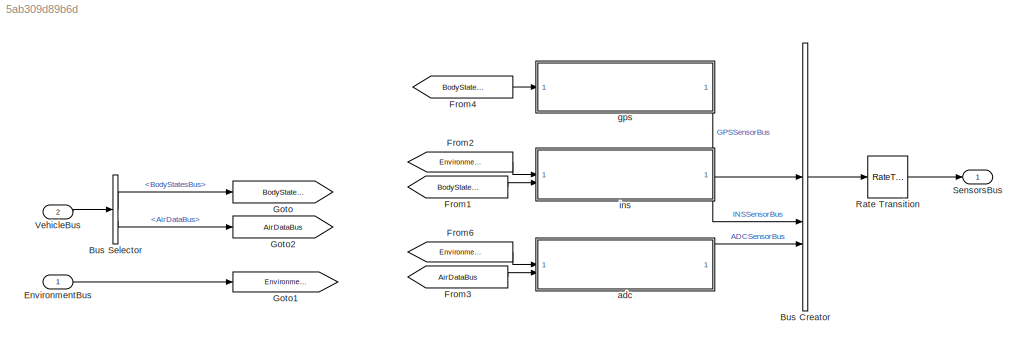
MODEL slx_5ab309d89b6d
KIND model
BLOCK [BusCreator] Bus Creator
  DisplayOption = bar
  InheritFromInputs = off
  Inputs = 3
  OutDataTypeStr = Bus: SensorsBus
BLOCK [BusSelector] Bus Selector
  OutputSignals = BodyStatesBus,AirDataBus
BLOCK [Inport] EnvironmentBus
  OutDataTypeStr = Bus: EnvironmentBus
BLOCK [From] From1
  GotoTag = BodyStatesBus
BLOCK [From] From2
  GotoTag = EnvironmentBus
BLOCK [From] From3
  GotoTag = AirDataBus
BLOCK [From] From4
  GotoTag = BodyStatesBus
BLOCK [From] From6
  GotoTag = EnvironmentBus
BLOCK [Goto] Goto
  GotoTag = BodyStatesBus
BLOCK [Goto] Goto1
  GotoTag = EnvironmentBus
BLOCK [Goto] Goto2
  GotoTag = AirDataBus
BLOCK [RateTransition] Rate Transition
BLOCK [Outport] SensorsBus
  BusOutputAsStruct = on
  OutDataTypeStr = Bus: SensorsBus
BLOCK [Inport] VehicleBus
  OutDataTypeStr = Bus: VehicleBus
  Port = 2
BLOCK [ModelReference] adc
  ModelNameDialog = adc.slx
  ModelReferenceVersion = 1.68
BLOCK [ModelReference] gps
  ModelNameDialog = gps.slx
  ModelReferenceVersion = 1.43
BLOCK [ModelReference] ins
  ModelNameDialog = ins.slx
  ModelReferenceVersion = 1.45
LINE Bus Creator:1 -> Rate Transition:1
LINE Bus Selector:1 -> Goto:1
LINE Bus Selector:2 -> Goto2:1
LINE EnvironmentBus:1 -> Goto1:1
LINE From1:1 -> ins:2
LINE From2:1 -> ins:1
LINE From3:1 -> adc:2
LINE From4:1 -> gps:1
LINE From6:1 -> adc:1
LINE Rate Transition:1 -> SensorsBus:1
LINE VehicleBus:1 -> Bus Selector:1
LINE adc:1 -> Bus Creator:3
LINE gps:1 -> Bus Creator:1
LINE ins:1 -> Bus Creator:2
